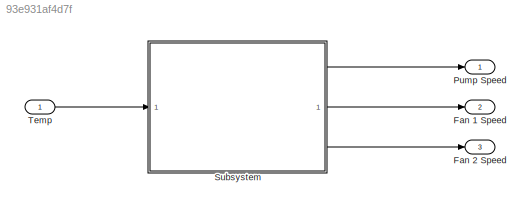
MODEL slx_93e931af4d7f
KIND model
CONFIG AbsTol = auto
CONFIG EnableMultiTasking = off
CONFIG FixedStep = auto
CONFIG MaxStep = auto
CONFIG MinStep = auto
CONFIG RelTol = 1e-3
CONFIG SampleTimeConstraint = Unconstrained
CONFIG SolverName = VariableStepAuto
CONFIG StartTime = 0.0
CONFIG StopTime = 60
BLOCK [Outport] Fan 1 Speed
  Port = 2
BLOCK [Outport] Fan 2 Speed
  Port = 3
BLOCK [Outport] Pump Speed
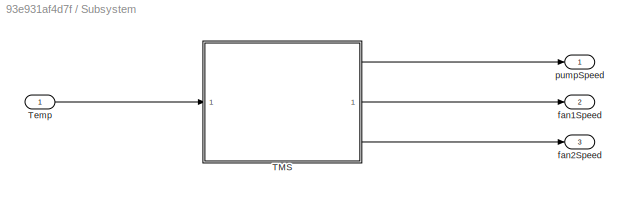
BLOCK [SubSystem] Subsystem
  TreatAsAtomicUnit = on
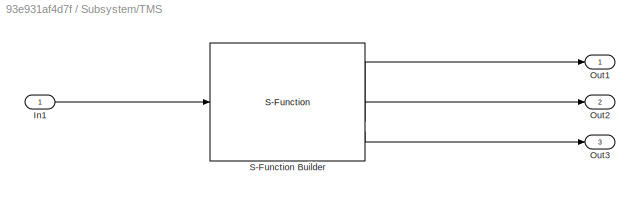
BLOCK [SubSystem] Subsystem/TMS
  TreatAsAtomicUnit = on
BLOCK [Inport] Subsystem/TMS/In1
BLOCK [Outport] Subsystem/TMS/Out1
BLOCK [Outport] Subsystem/TMS/Out2
  Port = 2
BLOCK [Outport] Subsystem/TMS/Out3
  Port = 3
BLOCK [S-Function] Subsystem/TMS/S-Function Builder
  CopyFcn = set_param(gcbh,'LinkStatus','none')
  EnableBusSupport = off
  FunctionName = TMS
  OpenFcn = sfunctionwizard(gcbh)
  SFcnIsStateOwnerBlock = off
  SFunctionDeploymentMode = off
  SFunctionModules = TMS_wrapper.c
BLOCK [Inport] Subsystem/Temp
BLOCK [Outport] Subsystem/fan1Speed
  Port = 2
BLOCK [Outport] Subsystem/fan2Speed
  Port = 3
BLOCK [Outport] Subsystem/pumpSpeed
BLOCK [Inport] Temp
LINE Subsystem/TMS/In1:1 -> Subsystem/TMS/S-Function Builder:1
LINE Subsystem/TMS/S-Function Builder:1 -> Subsystem/TMS/Out1:1
LINE Subsystem/TMS/S-Function Builder:2 -> Subsystem/TMS/Out2:1
LINE Subsystem/TMS/S-Function Builder:3 -> Subsystem/TMS/Out3:1
LINE Subsystem/TMS:1 -> Subsystem/pumpSpeed:1
LINE Subsystem/TMS:2 -> Subsystem/fan1Speed:1
LINE Subsystem/TMS:3 -> Subsystem/fan2Speed:1
LINE Subsystem/Temp:1 -> Subsystem/TMS:1
LINE Subsystem:1 -> Pump Speed:1
LINE Subsystem:2 -> Fan 1 Speed:1
LINE Subsystem:3 -> Fan 2 Speed:1
LINE Temp:1 -> Subsystem:1
